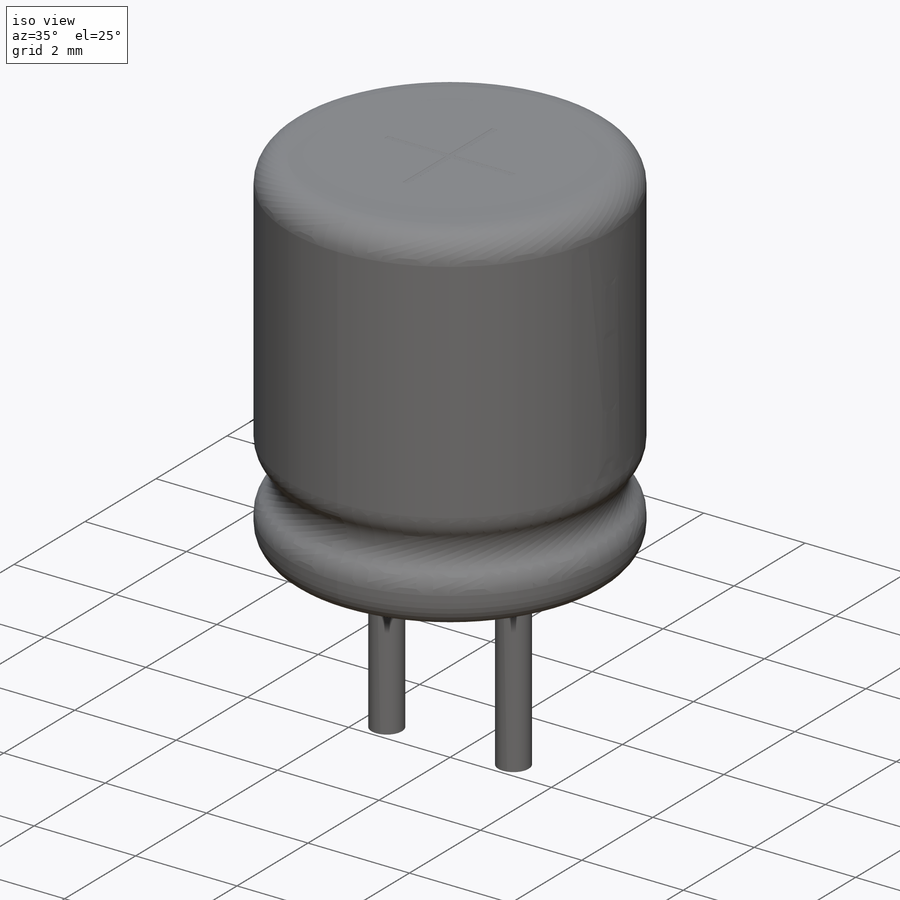
[diagram: iso view]
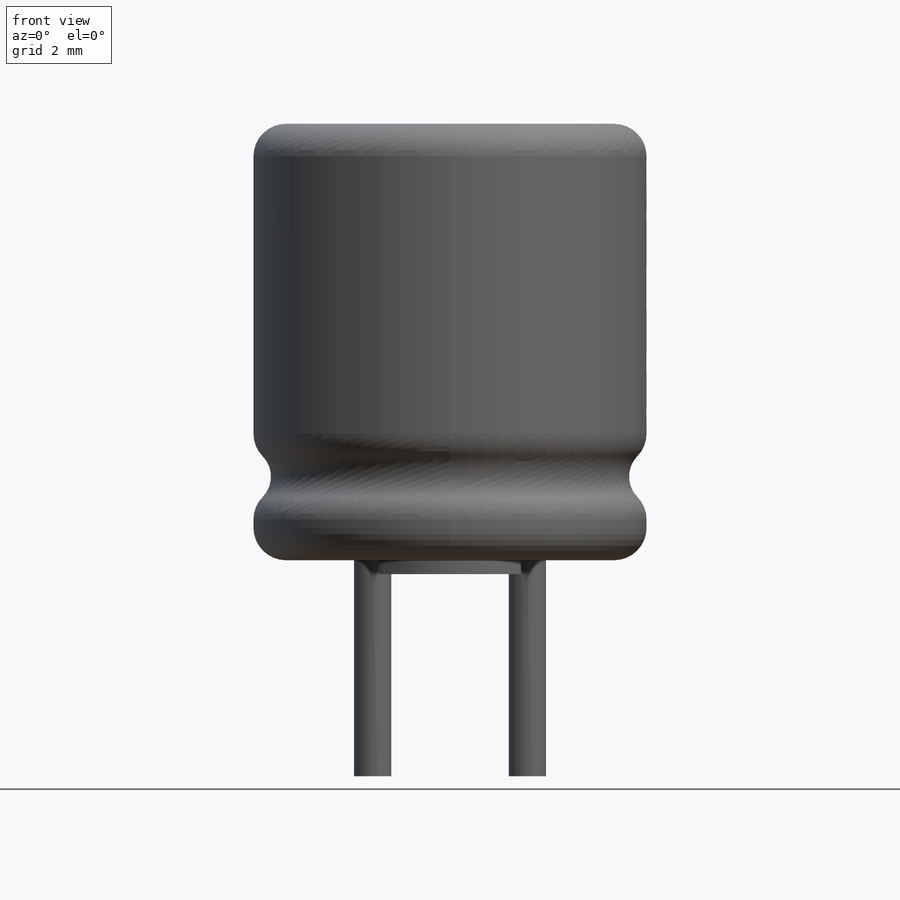
[diagram: front view]
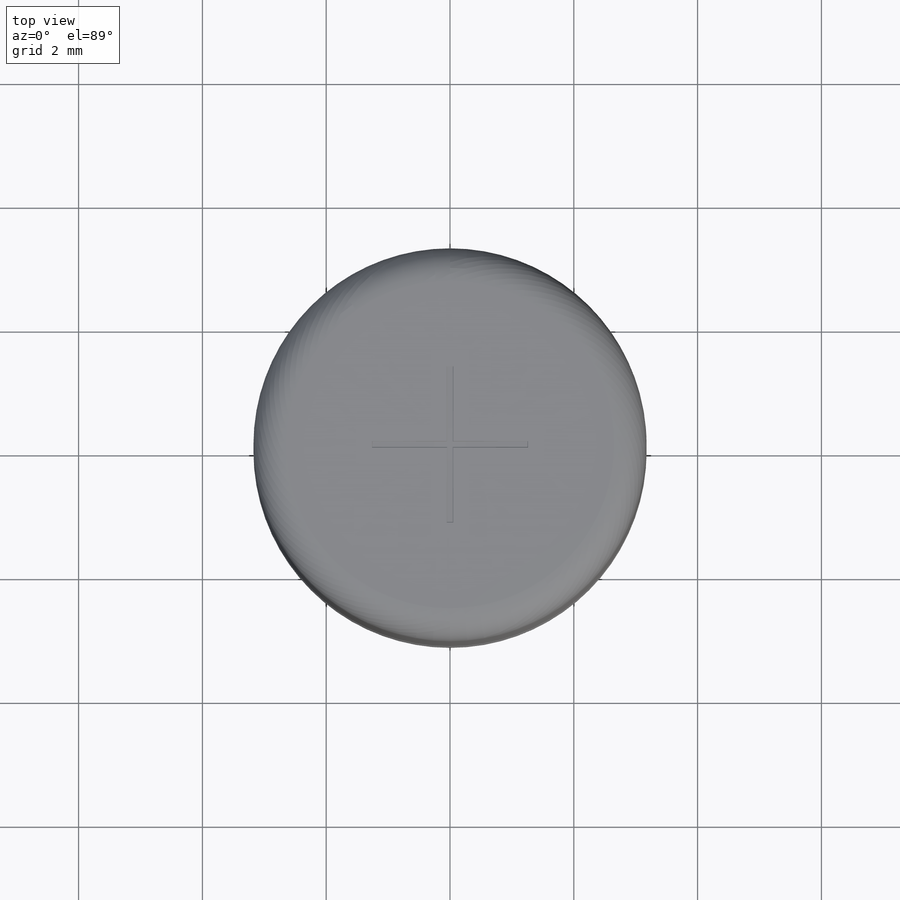
[diagram: top view]
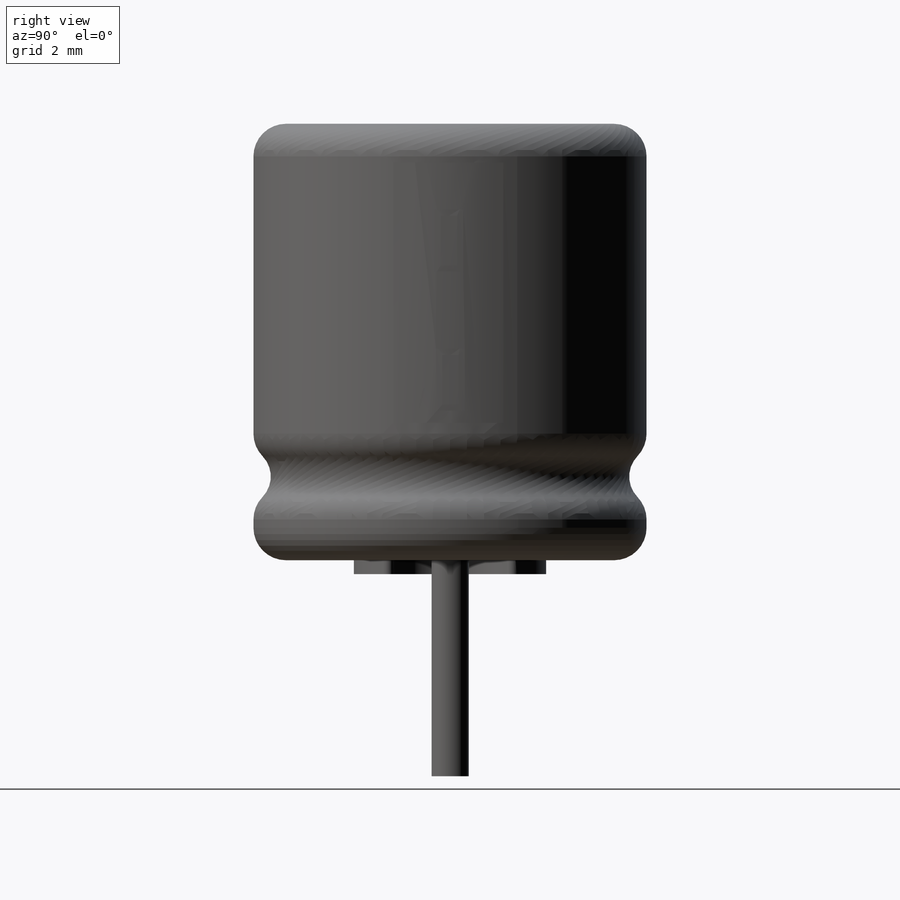
[diagram: right view]
SOLIDWORKS PART (.sldprt)
format: sldprt  version: not decoded by parser v0  size: 570,880 bytes
history: native  units: mm
features: sketch x9, plane x3, revolve x2, mirror x2, fillet x2, material x1, extrude x1, sweep x1, pattern_linear x1 (+14 scaffold rows collapsed)
feature tree (36):
  scaffold x14  (default folders/planes/origin — collapsed)
  material  "ABS PC"
  plane  "Plan de face"
  plane  "Plan de dessus"
  plane  "Plan de droite"
  sketch  "Esquisse1"  dims[c1.D1=~0.346987mm c1.D2=~0.693974mm c1.D3=~0.346987mm c1.D4=0.5mm c1.D5=12.5mm c1.D6=5.0mm c1.D7=0.5mm c1.D8=5.0mm c1.D9=12.5mm c2.D5=3.15mm c2.D6=7.0mm]
  revolve  "Révolution1"  Angle=360deg
  sketch  "Esquisse3"  dims[c1.D1=30.0mm c2.D1=0.0254mm]
  mirror  "Symétrie1"
  sketch  "Esquisse4"  dims[c1.D1=0.5mm c1.D2=11.0mm c1.D3=1.0mm c1.D4=1.0mm c1.D5=1.0mm c1.D6=0.1mm c1.D7=0.1mm c1.D8=0.1mm c1.D9=0.1mm c2.D4=0.1mm c2.D5=0.1mm c2.D10=0.1mm c2.D11=1.25mm c2.D12=1.25mm c2.D13=1.25mm c2.D1=0.1mm]
  sketch  "Esquisse5"  dims[D1=0.01mm D5=0.1mm D6=1.0mm D7=0.01mm]
  sketch  "Esquisse7"  dims[D1=2.52mm]
  revolve  "Enlèv. de mat.-Extru.-Mince3"  [1 undecoded]
  fillet  "Congé1"  Radius=0.01mm
  mirror  "Congé2"
  sketch  "Esquisse8"  dims[c1.D1=0.5mm c1.D2=11.0mm c1.D3=1.0mm c1.D4=1.0mm c1.D5=1.0mm c1.D6=0.1mm c1.D7=0.1mm c1.D8=0.1mm c1.D9=0.1mm c2.D4=0.1mm c2.D5=0.1mm c2.D10=0.1mm c2.D11=1.25mm c2.D12=1.25mm c2.D13=1.25mm]
  fillet  "Enroulement3"  [1 undecoded]
  sketch  "Esquisse10"  dims[D1=0.1mm]
  extrude  "Extrusion4"  Depth=0.25mm
  sketch  "Esquisse9"  dims[c1.D1=~0.208061mm c1.D2=0.6mm c2.D1=1.25mm]
  sketch  "Esquisse11"  dims[D1=1.0mm D2=5.0mm]
  sweep  "Balayage1"
  pattern_linear  "Répétition linéaire2"  Count1=2 Count2=1 Spacing1=2.5mm Spacing2=50mm
decode coverage: 13 of 18 modeling features carry decoded parameters
note: ~ marks probable driven/reference dimensions
note: 2 parameter values undecoded
note: suppression state not decoded; provenance and decode notes live in map.json
